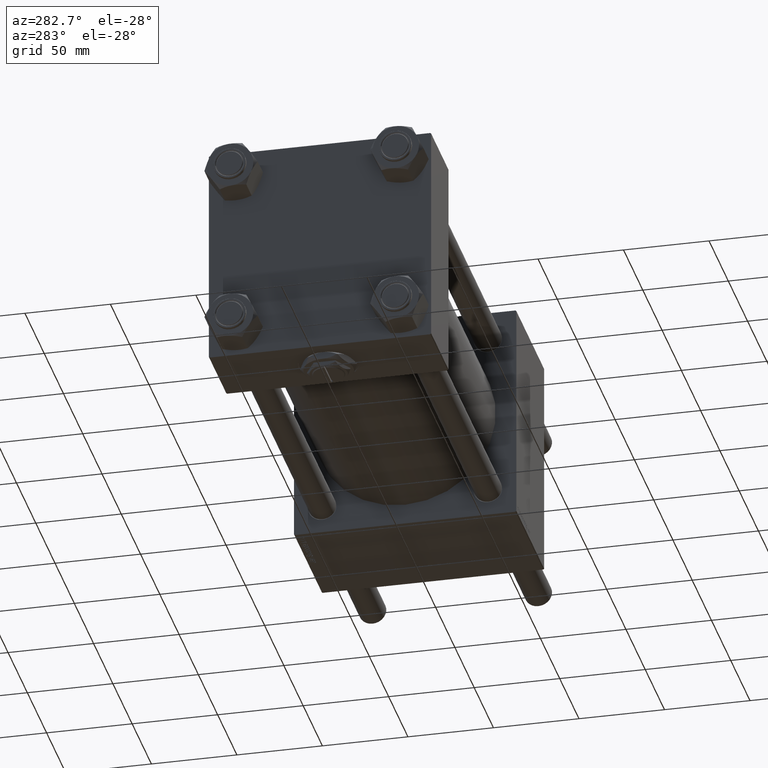
[diagram: clean part render]
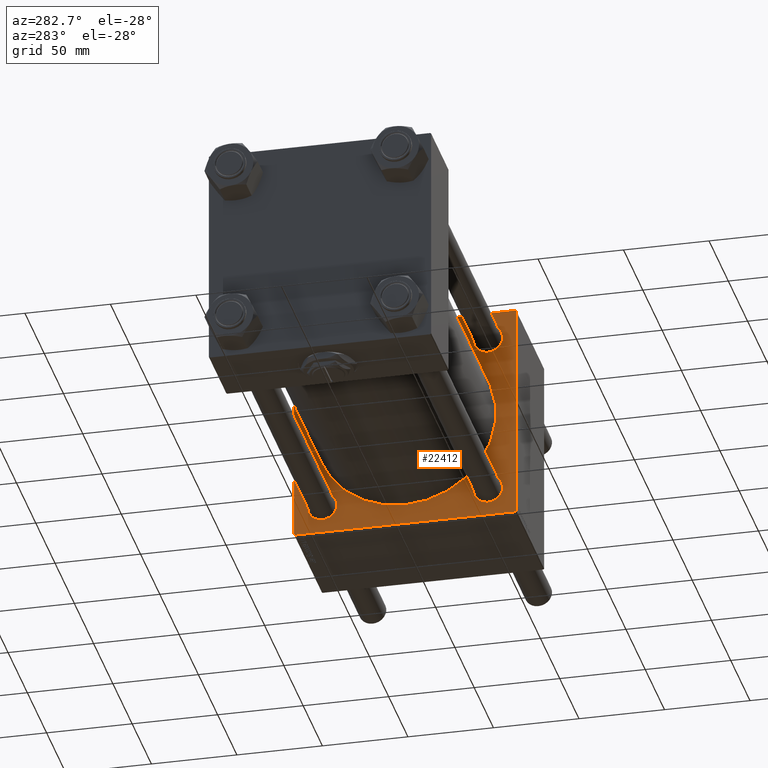
[diagram: same view with one face highlighted and labeled with its STEP entity id]
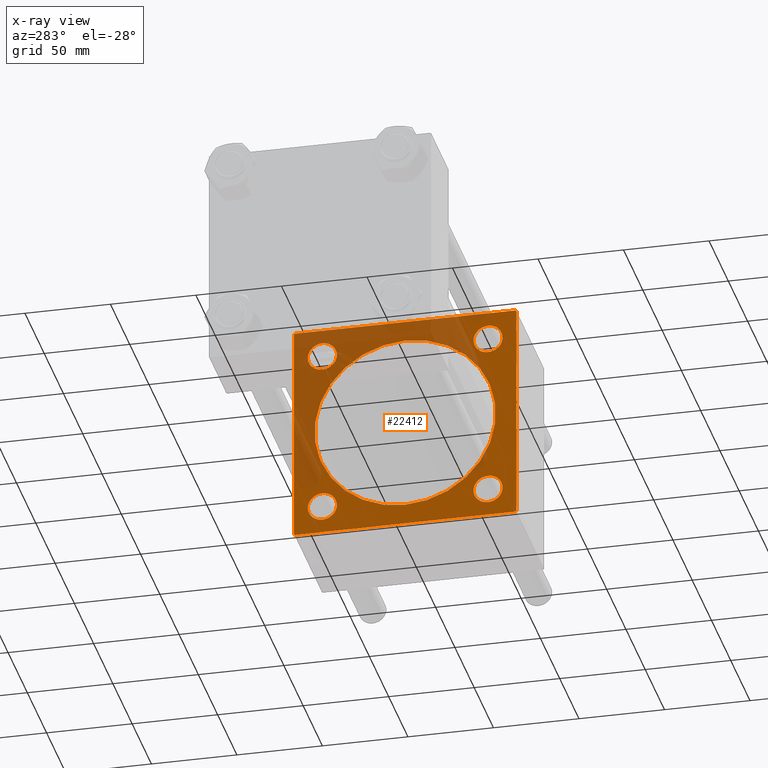
[diagram: x-ray of the same camera — body ghosted, the highlighted face saturated]
A machine part, auxiliary view. The second image highlights one B-rep face of the part: STEP entity #22412.
The next image is the same camera in x-ray: the body ghosted, the highlighted face saturated — about 40% of this face is hidden behind the body in this view.
In plain terms, the highlighted planar face has unit normal (-1, 0, 0).
Its self-contained STEP definition (entity closure, byte-faithful):
#174 = EDGE_CURVE ( 'NONE', #31957, #23507, #16712, .T. ) ;
#233 = DIRECTION ( 'NONE',  ( 0.000000000000000000, 0.000000000000000000, -1.000000000000000000 ) ) ;
#761 = VERTEX_POINT ( 'NONE', #57238 ) ;
#966 = CARTESIAN_POINT ( 'NONE',  ( 220.9999999999999716, 65.00000000000002842, 64.50000000000004263 ) ) ;
#1227 = ORIENTED_EDGE ( 'NONE', *, *, #29927, .T. ) ;
#1269 = DIRECTION ( 'NONE',  ( 1.000000000000000000, -0.000000000000000000, 0.000000000000000000 ) ) ;
#2905 = FACE_BOUND ( 'NONE', #28639, .T. ) ;
#3059 = VECTOR ( 'NONE', #57547, 1000.000000000000114 ) ;
#3207 = EDGE_CURVE ( 'NONE', #17533, #32750, #47754, .T. ) ;
#3293 = CIRCLE ( 'NONE', #45299, 8.500000000000035527 ) ;
#3399 = LINE ( 'NONE', #21911, #3059 ) ;
#3501 = FACE_BOUND ( 'NONE', #51318, .T. ) ;
#4717 = CIRCLE ( 'NONE', #38135, 53.00000000000000711 ) ;
#5046 = CIRCLE ( 'NONE', #51824, 8.500000000000035527 ) ;
#5158 = AXIS2_PLACEMENT_3D ( 'NONE', #46635, #28065, #23598 ) ;
#5405 = CARTESIAN_POINT ( 'NONE',  ( 220.9999999999999716, -64.99999999999998579, 65.00000000000000000 ) ) ;
#5612 = VECTOR ( 'NONE', #56909, 1000.000000000000114 ) ;
#5780 = AXIS2_PLACEMENT_3D ( 'NONE', #21809, #45138, #31069 ) ;
#6232 = AXIS2_PLACEMENT_3D ( 'NONE', #45738, #21503, #39763 ) ;
#6545 = EDGE_CURVE ( 'NONE', #761, #10482, #50001, .T. ) ;
#7032 = LINE ( 'NONE', #20760, #41611 ) ;
#7236 = ORIENTED_EDGE ( 'NONE', *, *, #43919, .T. ) ;
#7591 = CARTESIAN_POINT ( 'NONE',  ( 220.9999999999999716, -64.99999999999998579, 64.49999999999994316 ) ) ;
#8082 = AXIS2_PLACEMENT_3D ( 'NONE', #44756, #22015, #16927 ) ;
#8505 = AXIS2_PLACEMENT_3D ( 'NONE', #38701, #20736, #47676 ) ;
#8591 = VERTEX_POINT ( 'NONE', #49060 ) ;
#8708 = DIRECTION ( 'NONE',  ( 0.000000000000000000, 0.000000000000000000, -1.000000000000000000 ) ) ;
#9169 = CARTESIAN_POINT ( 'NONE',  ( 220.9999999999999716, -48.44999999999999574, 39.94999999999999574 ) ) ;
#9304 = DIRECTION ( 'NONE',  ( 0.000000000000000000, 0.000000000000000000, 1.000000000000000000 ) ) ;
#10482 = VERTEX_POINT ( 'NONE', #32704 ) ;
#10741 = ORIENTED_EDGE ( 'NONE', *, *, #53008, .T. ) ;
#10988 = ORIENTED_EDGE ( 'NONE', *, *, #3207, .T. ) ;
#11587 = VERTEX_POINT ( 'NONE', #49116 ) ;
#11947 = CIRCLE ( 'NONE', #6232, 53.00000000000000711 ) ;
#12463 = VERTEX_POINT ( 'NONE', #51648 ) ;
#13409 = VECTOR ( 'NONE', #8708, 1000.000000000000000 ) ;
#14013 = VECTOR ( 'NONE', #30196, 1000.000000000000000 ) ;
#14971 = VECTOR ( 'NONE', #51679, 1000.000000000000000 ) ;
#14981 = EDGE_CURVE ( 'NONE', #51297, #761, #3399, .T. ) ;
#16252 = EDGE_CURVE ( 'NONE', #45710, #39944, #5046, .T. ) ;
#16339 = PLANE ( 'NONE',  #8082 ) ;
#16712 = LINE ( 'NONE', #18431, #42941 ) ;
#16927 = DIRECTION ( 'NONE',  ( -0.000000000000000000, 0.000000000000000000, 1.000000000000000000 ) ) ;
#17441 = CARTESIAN_POINT ( 'NONE',  ( 220.9999999999999716, -48.44999999999999574, -39.94999999999999574 ) ) ;
#17533 = VERTEX_POINT ( 'NONE', #9169 ) ;
#17614 = ORIENTED_EDGE ( 'NONE', *, *, #20667, .T. ) ;
#17646 = CARTESIAN_POINT ( 'NONE',  ( 220.9999999999999716, 64.50000000000005684, 65.00000000000001421 ) ) ;
#17893 = ORIENTED_EDGE ( 'NONE', *, *, #58603, .T. ) ;
#18431 = CARTESIAN_POINT ( 'NONE',  ( 220.9999999999999716, -64.74999999999907629, 64.75000000000088107 ) ) ;
#18555 = ORIENTED_EDGE ( 'NONE', *, *, #56686, .T. ) ;
#18721 = EDGE_LOOP ( 'NONE', ( #56912, #47558, #57805, #55003, #27577, #27486, #10741, #33213 ) ) ;
#19121 = CARTESIAN_POINT ( 'NONE',  ( 220.9999999999999716, -48.44999999999999574, -48.45000000000003126 ) ) ;
#19408 = DIRECTION ( 'NONE',  ( 0.000000000000000000, 0.000000000000000000, 1.000000000000000000 ) ) ;
#19738 = VERTEX_POINT ( 'NONE', #17646 ) ;
#20667 = EDGE_CURVE ( 'NONE', #12463, #49506, #30908, .T. ) ;
#20736 = DIRECTION ( 'NONE',  ( 1.000000000000000000, -0.000000000000000000, 0.000000000000000000 ) ) ;
#20760 = CARTESIAN_POINT ( 'NONE',  ( 220.9999999999999716, 65.00000000000002842, 65.00000000000001421 ) ) ;
#21259 = CARTESIAN_POINT ( 'NONE',  ( 220.9999999999999716, 64.75000000000004263, 64.75000000000004263 ) ) ;
#21503 = DIRECTION ( 'NONE',  ( 1.000000000000000000, 0.000000000000000000, 0.000000000000000000 ) ) ;
#21704 = DIRECTION ( 'NONE',  ( 0.000000000000000000, 0.000000000000000000, 1.000000000000000000 ) ) ;
#21717 = FACE_OUTER_BOUND ( 'NONE', #18721, .T. ) ;
#21809 = CARTESIAN_POINT ( 'NONE',  ( 220.9999999999999716, -48.44999999999999574, 48.45000000000003126 ) ) ;
#21911 = CARTESIAN_POINT ( 'NONE',  ( 220.9999999999999716, 64.74999999999997158, -64.74999999999997158 ) ) ;
#22015 = DIRECTION ( 'NONE',  ( -1.000000000000000000, 0.000000000000000000, -0.000000000000000000 ) ) ;
#22412 = ADVANCED_FACE ( 'NONE', ( #39377, #44461, #3501, #2905, #26482, #21717 ), #16339, .T. ) ;
#23507 = VERTEX_POINT ( 'NONE', #41398 ) ;
#23598 = DIRECTION ( 'NONE',  ( 0.000000000000000000, 0.000000000000000000, 1.000000000000000000 ) ) ;
#24260 = DIRECTION ( 'NONE',  ( 0.000000000000000000, 0.000000000000000000, 1.000000000000000000 ) ) ;
#25156 = LINE ( 'NONE', #21259, #5612 ) ;
#26482 = FACE_BOUND ( 'NONE', #54411, .T. ) ;
#26785 = EDGE_CURVE ( 'NONE', #49506, #12463, #3293, .T. ) ;
#26829 = CARTESIAN_POINT ( 'NONE',  ( 220.9999999999999716, 48.45000000000000995, -39.94999999999998153 ) ) ;
#27068 = ORIENTED_EDGE ( 'NONE', *, *, #16252, .T. ) ;
#27486 = ORIENTED_EDGE ( 'NONE', *, *, #43432, .T. ) ;
#27577 = ORIENTED_EDGE ( 'NONE', *, *, #30022, .F. ) ;
#27692 = CARTESIAN_POINT ( 'NONE',  ( 220.9999999999999716, 48.45000000000000995, 56.95000000000005258 ) ) ;
#27952 = DIRECTION ( 'NONE',  ( 0.000000000000000000, 0.000000000000000000, 1.000000000000000000 ) ) ;
#27985 = DIRECTION ( 'NONE',  ( -0.000000000000000000, 0.7071067811865573427, 0.7071067811865376918 ) ) ;
#28065 = DIRECTION ( 'NONE',  ( 1.000000000000000000, -0.000000000000000000, 0.000000000000000000 ) ) ;
#28639 = EDGE_LOOP ( 'NONE', ( #27068, #18555 ) ) ;
#29045 = ORIENTED_EDGE ( 'NONE', *, *, #26785, .T. ) ;
#29466 = CIRCLE ( 'NONE', #43799, 8.500000000000035527 ) ;
#29927 = EDGE_CURVE ( 'NONE', #42645, #11587, #58771, .T. ) ;
#30022 = EDGE_CURVE ( 'NONE', #19738, #23507, #7032, .T. ) ;
#30196 = DIRECTION ( 'NONE',  ( 0.000000000000000000, 0.000000000000000000, -1.000000000000000000 ) ) ;
#30521 = EDGE_CURVE ( 'NONE', #45872, #8591, #11947, .T. ) ;
#30908 = CIRCLE ( 'NONE', #5158, 8.500000000000035527 ) ;
#31069 = DIRECTION ( 'NONE',  ( 0.000000000000000000, 0.000000000000000000, 1.000000000000000000 ) ) ;
#31417 = CARTESIAN_POINT ( 'NONE',  ( 220.9999999999999716, -48.44999999999999574, -48.45000000000003126 ) ) ;
#31957 = VERTEX_POINT ( 'NONE', #7591 ) ;
#32704 = CARTESIAN_POINT ( 'NONE',  ( 220.9999999999999716, -64.49999999999991473, -65.00000000000001421 ) ) ;
#32750 = VERTEX_POINT ( 'NONE', #46277 ) ;
#33213 = ORIENTED_EDGE ( 'NONE', *, *, #14981, .T. ) ;
#33407 = CARTESIAN_POINT ( 'NONE',  ( 220.9999999999999716, -64.74999999999816680, -64.75000000000176215 ) ) ;
#35448 = VECTOR ( 'NONE', #37424, 1000.000000000000000 ) ;
#35614 = CARTESIAN_POINT ( 'NONE',  ( 220.9999999999999716, 3.888542821515762466E-15, -53.00000000000000711 ) ) ;
#37424 = DIRECTION ( 'NONE',  ( 0.000000000000000000, -1.000000000000000000, -2.135044278125300850E-16 ) ) ;
#37906 = LINE ( 'NONE', #33407, #14971 ) ;
#38135 = AXIS2_PLACEMENT_3D ( 'NONE', #41208, #41512, #233 ) ;
#38582 = ORIENTED_EDGE ( 'NONE', *, *, #41912, .T. ) ;
#38701 = CARTESIAN_POINT ( 'NONE',  ( 220.9999999999999716, -48.44999999999999574, 48.45000000000003126 ) ) ;
#38728 = DIRECTION ( 'NONE',  ( 0.000000000000000000, -1.000000000000000000, -1.067522139062650425E-16 ) ) ;
#39377 = FACE_BOUND ( 'NONE', #44127, .T. ) ;
#39714 = EDGE_LOOP ( 'NONE', ( #29045, #17614 ) ) ;
#39763 = DIRECTION ( 'NONE',  ( 0.000000000000000000, 0.000000000000000000, -1.000000000000000000 ) ) ;
#39944 = VERTEX_POINT ( 'NONE', #45240 ) ;
#39992 = CIRCLE ( 'NONE', #8505, 8.500000000000035527 ) ;
#41034 = CARTESIAN_POINT ( 'NONE',  ( 220.9999999999999716, 65.00000000000002842, -64.99999999999998579 ) ) ;
#41208 = CARTESIAN_POINT ( 'NONE',  ( 220.9999999999999716, -2.602085213965210642E-15, 0.000000000000000000 ) ) ;
#41398 = CARTESIAN_POINT ( 'NONE',  ( 220.9999999999999716, -64.49999999999991473, 65.00000000000000000 ) ) ;
#41512 = DIRECTION ( 'NONE',  ( 1.000000000000000000, 0.000000000000000000, 0.000000000000000000 ) ) ;
#41611 = VECTOR ( 'NONE', #38728, 1000.000000000000000 ) ;
#41912 = EDGE_CURVE ( 'NONE', #8591, #45872, #4717, .T. ) ;
#42240 = CARTESIAN_POINT ( 'NONE',  ( 220.9999999999999716, 48.45000000000000995, -48.45000000000001705 ) ) ;
#42645 = VERTEX_POINT ( 'NONE', #26829 ) ;
#42941 = VECTOR ( 'NONE', #27985, 1000.000000000000114 ) ;
#43432 = EDGE_CURVE ( 'NONE', #19738, #55567, #25156, .T. ) ;
#43683 = LINE ( 'NONE', #58349, #14013 ) ;
#43708 = AXIS2_PLACEMENT_3D ( 'NONE', #19121, #51133, #19408 ) ;
#43799 = AXIS2_PLACEMENT_3D ( 'NONE', #42240, #1269, #24260 ) ;
#43919 = EDGE_CURVE ( 'NONE', #11587, #42645, #29466, .T. ) ;
#44127 = EDGE_LOOP ( 'NONE', ( #17893, #10988 ) ) ;
#44461 = FACE_BOUND ( 'NONE', #39714, .T. ) ;
#44743 = DIRECTION ( 'NONE',  ( 1.000000000000000000, -0.000000000000000000, 0.000000000000000000 ) ) ;
#44756 = CARTESIAN_POINT ( 'NONE',  ( 220.9999999999999716, 0.000000000000000000, 0.000000000000000000 ) ) ;
#45138 = DIRECTION ( 'NONE',  ( 1.000000000000000000, -0.000000000000000000, 0.000000000000000000 ) ) ;
#45240 = CARTESIAN_POINT ( 'NONE',  ( 220.9999999999999716, -48.44999999999999574, -56.95000000000005969 ) ) ;
#45299 = AXIS2_PLACEMENT_3D ( 'NONE', #55813, #55220, #27952 ) ;
#45478 = DIRECTION ( 'NONE',  ( 1.000000000000000000, -0.000000000000000000, 0.000000000000000000 ) ) ;
#45641 = CIRCLE ( 'NONE', #43708, 8.500000000000035527 ) ;
#45710 = VERTEX_POINT ( 'NONE', #17441 ) ;
#45738 = CARTESIAN_POINT ( 'NONE',  ( 220.9999999999999716, -2.602085213965210642E-15, 0.000000000000000000 ) ) ;
#45872 = VERTEX_POINT ( 'NONE', #35614 ) ;
#46277 = CARTESIAN_POINT ( 'NONE',  ( 220.9999999999999716, -48.44999999999999574, 56.95000000000005969 ) ) ;
#46635 = CARTESIAN_POINT ( 'NONE',  ( 220.9999999999999716, 48.45000000000000995, 48.45000000000001705 ) ) ;
#47343 = EDGE_CURVE ( 'NONE', #31957, #48253, #55674, .T. ) ;
#47558 = ORIENTED_EDGE ( 'NONE', *, *, #54502, .T. ) ;
#47676 = DIRECTION ( 'NONE',  ( 0.000000000000000000, 0.000000000000000000, 1.000000000000000000 ) ) ;
#47754 = CIRCLE ( 'NONE', #5780, 8.500000000000035527 ) ;
#48253 = VERTEX_POINT ( 'NONE', #58160 ) ;
#49060 = CARTESIAN_POINT ( 'NONE',  ( 220.9999999999999716, -2.602085213965210642E-15, 53.00000000000000711 ) ) ;
#49116 = CARTESIAN_POINT ( 'NONE',  ( 220.9999999999999716, 48.45000000000000995, -56.95000000000005258 ) ) ;
#49506 = VERTEX_POINT ( 'NONE', #27692 ) ;
#49588 = CARTESIAN_POINT ( 'NONE',  ( 220.9999999999999716, 65.00000000000002842, -64.49999999999992895 ) ) ;
#50001 = LINE ( 'NONE', #41034, #35448 ) ;
#51133 = DIRECTION ( 'NONE',  ( 1.000000000000000000, -0.000000000000000000, 0.000000000000000000 ) ) ;
#51297 = VERTEX_POINT ( 'NONE', #49588 ) ;
#51318 = EDGE_LOOP ( 'NONE', ( #1227, #7236 ) ) ;
#51648 = CARTESIAN_POINT ( 'NONE',  ( 220.9999999999999716, 48.45000000000000995, 39.94999999999998153 ) ) ;
#51679 = DIRECTION ( 'NONE',  ( 0.000000000000000000, -0.7071067811865672237, 0.7071067811865279218 ) ) ;
#51824 = AXIS2_PLACEMENT_3D ( 'NONE', #31417, #45478, #9304 ) ;
#53008 = EDGE_CURVE ( 'NONE', #55567, #51297, #43683, .T. ) ;
#53041 = AXIS2_PLACEMENT_3D ( 'NONE', #58521, #44743, #21704 ) ;
#54411 = EDGE_LOOP ( 'NONE', ( #38582, #55176 ) ) ;
#54502 = EDGE_CURVE ( 'NONE', #10482, #48253, #37906, .T. ) ;
#55003 = ORIENTED_EDGE ( 'NONE', *, *, #174, .T. ) ;
#55176 = ORIENTED_EDGE ( 'NONE', *, *, #30521, .T. ) ;
#55220 = DIRECTION ( 'NONE',  ( 1.000000000000000000, -0.000000000000000000, 0.000000000000000000 ) ) ;
#55567 = VERTEX_POINT ( 'NONE', #966 ) ;
#55674 = LINE ( 'NONE', #5405, #13409 ) ;
#55813 = CARTESIAN_POINT ( 'NONE',  ( 220.9999999999999716, 48.45000000000000995, 48.45000000000001705 ) ) ;
#56686 = EDGE_CURVE ( 'NONE', #39944, #45710, #45641, .T. ) ;
#56909 = DIRECTION ( 'NONE',  ( 0.000000000000000000, 0.7071067811865474617, -0.7071067811865474617 ) ) ;
#56912 = ORIENTED_EDGE ( 'NONE', *, *, #6545, .T. ) ;
#57238 = CARTESIAN_POINT ( 'NONE',  ( 220.9999999999999716, 64.49999999999997158, -64.99999999999998579 ) ) ;
#57547 = DIRECTION ( 'NONE',  ( -0.000000000000000000, -0.7071067811865474617, -0.7071067811865474617 ) ) ;
#57805 = ORIENTED_EDGE ( 'NONE', *, *, #47343, .F. ) ;
#58160 = CARTESIAN_POINT ( 'NONE',  ( 220.9999999999999716, -64.99999999999998579, -64.49999999999997158 ) ) ;
#58349 = CARTESIAN_POINT ( 'NONE',  ( 220.9999999999999716, 65.00000000000002842, 65.00000000000001421 ) ) ;
#58521 = CARTESIAN_POINT ( 'NONE',  ( 220.9999999999999716, 48.45000000000000995, -48.45000000000001705 ) ) ;
#58603 = EDGE_CURVE ( 'NONE', #32750, #17533, #39992, .T. ) ;
#58771 = CIRCLE ( 'NONE', #53041, 8.500000000000035527 ) ;